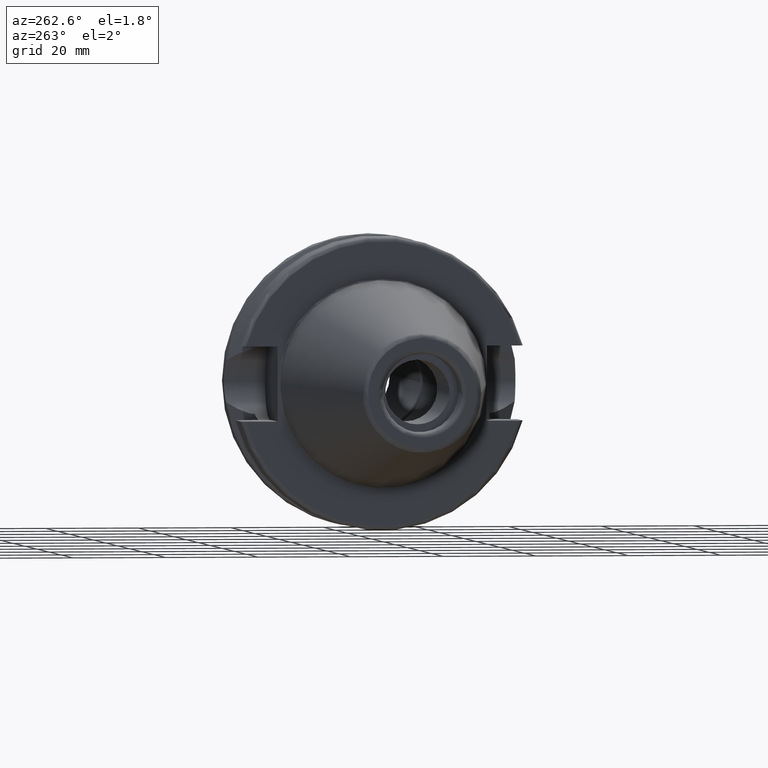
[diagram: clean part render]
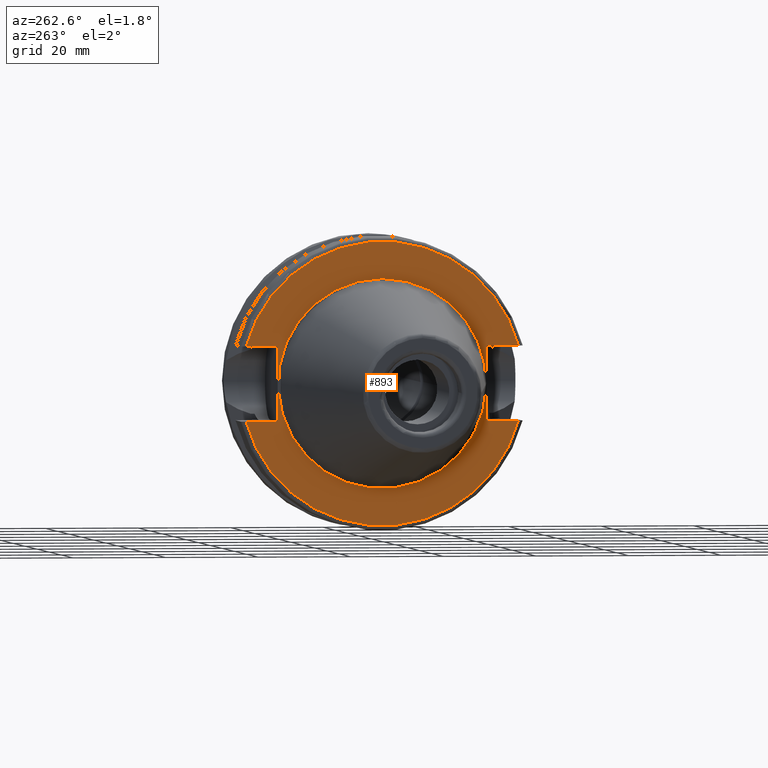
[diagram: same view with one face highlighted and labeled with its STEP entity id]
A machine part, auxiliary view. The second image highlights one B-rep face of the part: STEP entity #893.
In plain terms, the highlighted planar face has unit normal (-1, 0, 0).
Its self-contained STEP definition (entity closure, byte-faithful):
#64=LINE('',#1684,#109);
#68=LINE('',#1692,#113);
#71=LINE('',#1712,#116);
#82=LINE('',#1812,#127);
#85=LINE('',#1833,#130);
#87=LINE('',#1836,#132);
#109=VECTOR('',#1150,10.);
#113=VECTOR('',#1156,10.);
#116=VECTOR('',#1161,10.);
#127=VECTOR('',#1216,10.);
#130=VECTOR('',#1221,10.);
#132=VECTOR('',#1225,10.);
#161=FACE_BOUND('',#282,.T.);
#177=PLANE('',#1017);
#221=FACE_OUTER_BOUND('',#281,.T.);
#281=EDGE_LOOP('',(#782,#783,#784,#785,#786,#787,#788,#789));
#282=EDGE_LOOP('',(#790));
#334=CIRCLE('',#994,30.5);
#346=CIRCLE('',#1016,22.5);
#347=CIRCLE('',#1018,30.5);
#402=VERTEX_POINT('',#1672);
#403=VERTEX_POINT('',#1683);
#405=VERTEX_POINT('',#1689);
#406=VERTEX_POINT('',#1691);
#421=VERTEX_POINT('',#1772);
#428=VERTEX_POINT('',#1809);
#429=VERTEX_POINT('',#1811);
#433=VERTEX_POINT('',#1832);
#441=VERTEX_POINT('',#1862);
#502=EDGE_CURVE('',#403,#402,#64,.T.);
#506=EDGE_CURVE('',#406,#405,#68,.T.);
#511=EDGE_CURVE('',#405,#403,#71,.T.);
#531=EDGE_CURVE('',#406,#421,#334,.T.);
#541=EDGE_CURVE('',#429,#428,#82,.T.);
#546=EDGE_CURVE('',#433,#421,#85,.T.);
#548=EDGE_CURVE('',#428,#433,#87,.T.);
#562=EDGE_CURVE('',#441,#441,#346,.T.);
#563=EDGE_CURVE('',#429,#402,#347,.T.);
#782=ORIENTED_EDGE('',*,*,#502,.T.);
#783=ORIENTED_EDGE('',*,*,#563,.F.);
#784=ORIENTED_EDGE('',*,*,#541,.T.);
#785=ORIENTED_EDGE('',*,*,#548,.T.);
#786=ORIENTED_EDGE('',*,*,#546,.T.);
#787=ORIENTED_EDGE('',*,*,#531,.F.);
#788=ORIENTED_EDGE('',*,*,#506,.T.);
#789=ORIENTED_EDGE('',*,*,#511,.T.);
#790=ORIENTED_EDGE('',*,*,#562,.T.);
#893=ADVANCED_FACE('',(#221,#161),#177,.T.);
#994=AXIS2_PLACEMENT_3D('',#1773,#1203,#1204);
#1016=AXIS2_PLACEMENT_3D('',#1864,#1261,#1262);
#1017=AXIS2_PLACEMENT_3D('',#1865,#1263,#1264);
#1018=AXIS2_PLACEMENT_3D('',#1866,#1265,#1266);
#1150=DIRECTION('',(0.,-1.,0.));
#1156=DIRECTION('',(0.,1.,0.));
#1161=DIRECTION('',(0.,0.,1.));
#1203=DIRECTION('center_axis',(1.,0.,0.));
#1204=DIRECTION('ref_axis',(0.,0.,-1.));
#1216=DIRECTION('',(0.,-1.,0.));
#1221=DIRECTION('',(0.,1.,0.));
#1225=DIRECTION('',(0.,0.,-1.));
#1261=DIRECTION('center_axis',(1.,0.,0.));
#1262=DIRECTION('ref_axis',(0.,0.,-1.));
#1263=DIRECTION('center_axis',(-1.,0.,0.));
#1264=DIRECTION('ref_axis',(0.,0.,1.));
#1265=DIRECTION('center_axis',(1.,0.,0.));
#1266=DIRECTION('ref_axis',(0.,0.,-1.));
#1672=CARTESIAN_POINT('',(1.99999999999999,-29.4184890842477,8.05));
#1683=CARTESIAN_POINT('',(1.99999999999999,-22.6,8.05));
#1684=CARTESIAN_POINT('',(1.99999999999999,3.95,8.05));
#1689=CARTESIAN_POINT('',(1.99999999999999,-22.6,-8.05));
#1691=CARTESIAN_POINT('',(1.99999999999999,-29.4184890842477,-8.05));
#1692=CARTESIAN_POINT('',(1.99999999999999,3.95,-8.05));
#1712=CARTESIAN_POINT('',(1.99999999999999,-22.6,0.));
#1772=CARTESIAN_POINT('',(1.99999999999999,29.4184890842477,-8.05));
#1773=CARTESIAN_POINT('Origin',(1.99999999999999,0.,0.));
#1809=CARTESIAN_POINT('',(1.99999999999999,22.6,8.05));
#1811=CARTESIAN_POINT('',(1.99999999999999,29.4184890842477,8.05));
#1812=CARTESIAN_POINT('',(1.99999999999999,26.55,8.05));
#1832=CARTESIAN_POINT('',(1.99999999999999,22.6,-8.05));
#1833=CARTESIAN_POINT('',(1.99999999999999,26.55,-8.05));
#1836=CARTESIAN_POINT('',(1.99999999999999,22.6,0.));
#1862=CARTESIAN_POINT('',(2.,-2.75545529808154E-15,22.5));
#1864=CARTESIAN_POINT('Origin',(2.,0.,0.));
#1865=CARTESIAN_POINT('Origin',(1.99999999999999,30.5,0.));
#1866=CARTESIAN_POINT('Origin',(1.99999999999999,0.,0.));